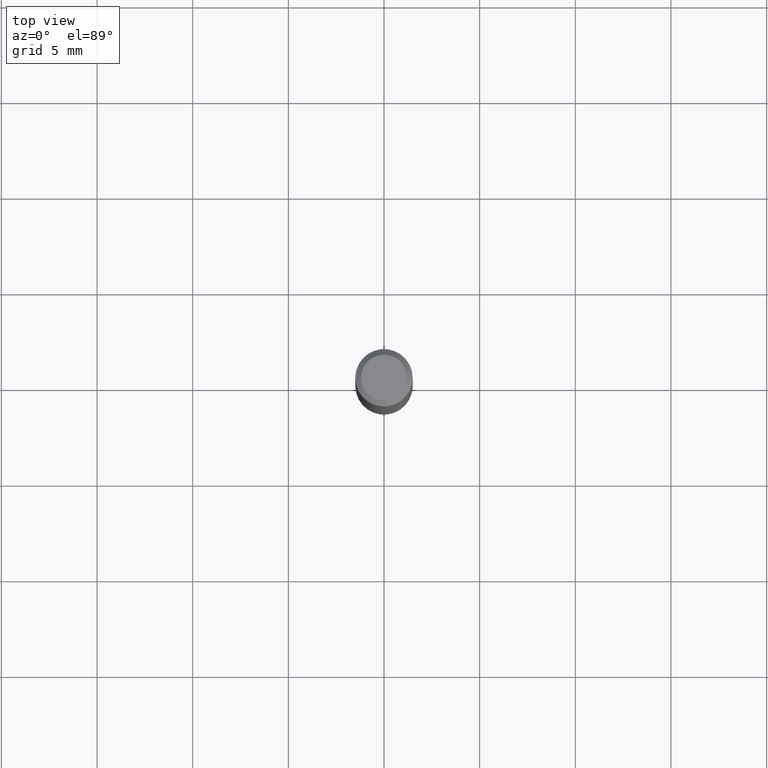
[diagram: clean part render]
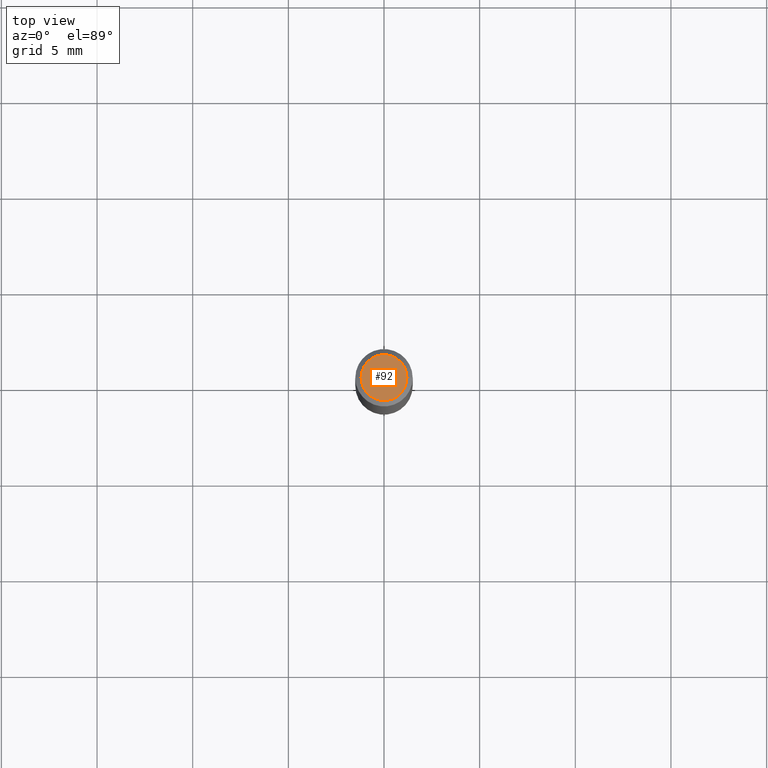
[diagram: same view with one face highlighted and labeled with its STEP entity id]
A machine part, top view. The second image highlights one B-rep face of the part: STEP entity #92.
In plain terms, the highlighted planar face has unit normal (0, -0, -1).
Its self-contained STEP definition (entity closure, byte-faithful):
#30 = CARTESIAN_POINT ( 'NONE',  ( 8.265746106709734507E-48, -1.180129479067563789E-33, -3.380025165646692144E-19 ) ) ;
#67 = CARTESIAN_POINT ( 'NONE',  ( 0.04724000000000000421, -3.852183633974369345E-16, -3.380025165621689721E-19 ) ) ;
#74 = DIRECTION ( 'NONE',  ( -2.445468806185136597E-29, 3.491481338843145583E-15, 1.000000000000000000 ) ) ;
#77 = DIRECTION ( 'NONE',  ( 1.000000000000000000, -6.982962677686266711E-15, 4.876185090822587894E-29 ) ) ;
#87 = AXIS2_PLACEMENT_3D ( 'NONE', #293, #74, #77 ) ;
#91 = VERTEX_POINT ( 'NONE', #67 ) ;
#92 = ADVANCED_FACE ( 'NONE', ( #212 ), #213, .F. ) ;
#111 = AXIS2_PLACEMENT_3D ( 'NONE', #329, #288, #438 ) ;
#141 = DIRECTION ( 'NONE',  ( 1.000000000000000000, -6.982962677686266711E-15, 4.876185090822587894E-29 ) ) ;
#177 = DIRECTION ( 'NONE',  ( -2.445468806185136597E-29, 3.491481338843145583E-15, 1.000000000000000000 ) ) ;
#182 = CIRCLE ( 'NONE', #436, 0.04724000000000000421 ) ;
#193 = EDGE_CURVE ( 'NONE', #91, #418, #311, .T. ) ;
#212 = FACE_OUTER_BOUND ( 'NONE', #389, .T. ) ;
#213 = PLANE ( 'NONE',  #111 ) ;
#288 = DIRECTION ( 'NONE',  ( 2.438088387897960049E-29, -3.491481338843145188E-15, -1.000000000000000000 ) ) ;
#291 = EDGE_CURVE ( 'NONE', #418, #91, #182, .T. ) ;
#293 = CARTESIAN_POINT ( 'NONE',  ( 8.265746106709734507E-48, -1.180129479067563789E-33, -3.380025165646692144E-19 ) ) ;
#311 = CIRCLE ( 'NONE', #87, 0.04724000000000000421 ) ;
#329 = CARTESIAN_POINT ( 'NONE',  ( 4.132873053354867254E-48, -5.900647395337818946E-34, -1.690012582823346072E-19 ) ) ;
#389 = EDGE_LOOP ( 'NONE', ( #462, #392 ) ) ;
#392 = ORIENTED_EDGE ( 'NONE', *, *, #193, .T. ) ;
#418 = VERTEX_POINT ( 'NONE', #425 ) ;
#425 = CARTESIAN_POINT ( 'NONE',  ( -0.04724000000000000421, 3.504923541997677355E-16, -3.380025165670481712E-19 ) ) ;
#436 = AXIS2_PLACEMENT_3D ( 'NONE', #30, #177, #141 ) ;
#438 = DIRECTION ( 'NONE',  ( -1.000000000000000000, 6.982962677686265922E-15, -4.876176775795935793E-29 ) ) ;
#462 = ORIENTED_EDGE ( 'NONE', *, *, #291, .T. ) ;